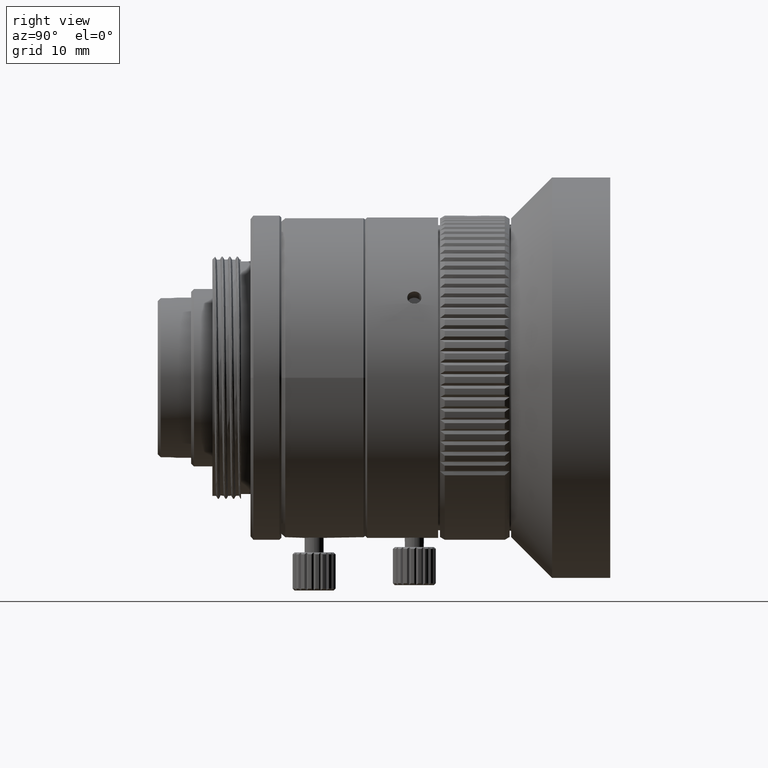
[diagram: clean part render]
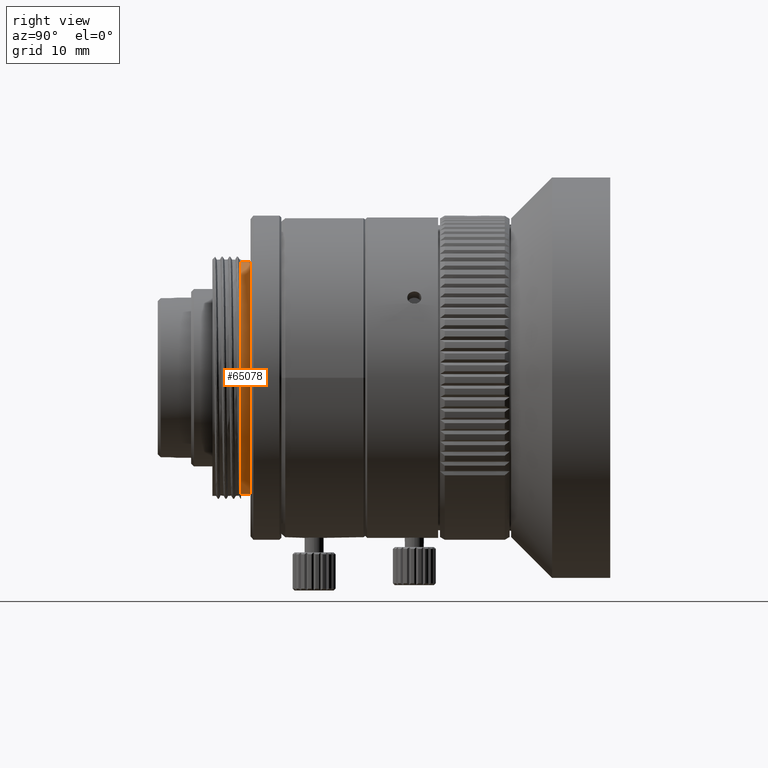
[diagram: same view with one face highlighted and labeled with its STEP entity id]
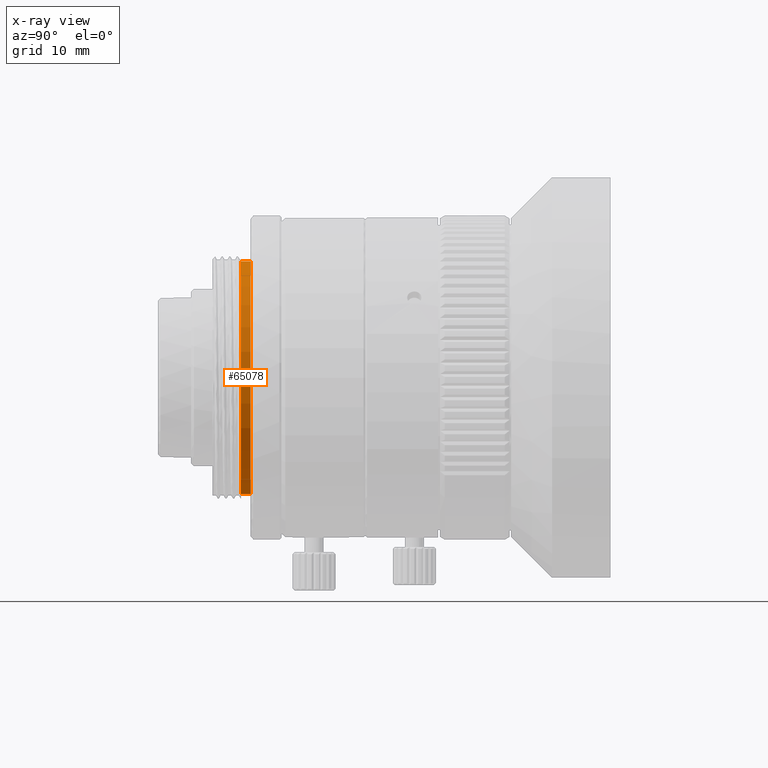
[diagram: x-ray of the same camera — body ghosted, the highlighted face saturated]
A machine part, right view. The second image highlights one B-rep face of the part: STEP entity #65078.
The next image is the same camera in x-ray: the body ghosted, the highlighted face saturated — about 0% of this face is hidden behind the body in this view.
In plain terms, the highlighted cylindrical surface (partial cylindrical patch) has radius 12.2 mm, axis along (0, -1, 0).
Its self-contained STEP definition (entity closure, byte-faithful):
#4208 = ORIENTED_EDGE ( 'NONE', *, *, #79176, .T. ) ;
#4575 = CARTESIAN_POINT ( 'NONE',  ( 0.000000000000000000, -9.900533375536999969, -12.19999999999999929 ) ) ;
#4919 = CARTESIAN_POINT ( 'NONE',  ( 0.000000000000000000, -9.900533375536999969, 0.000000000000000000 ) ) ;
#6666 = EDGE_CURVE ( 'NONE', #29202, #13579, #39904, .T. ) ;
#8009 = DIRECTION ( 'NONE',  ( 0.000000000000000000, 0.000000000000000000, -1.000000000000000000 ) ) ;
#9044 = CIRCLE ( 'NONE', #27164, 12.19999999999999929 ) ;
#11989 = DIRECTION ( 'NONE',  ( 0.000000000000000000, 0.000000000000000000, -1.000000000000000000 ) ) ;
#13579 = VERTEX_POINT ( 'NONE', #21534 ) ;
#17277 = DIRECTION ( 'NONE',  ( 0.000000000000000000, -1.000000000000000000, 0.000000000000000000 ) ) ;
#21534 = CARTESIAN_POINT ( 'NONE',  ( 1.494069094959770859E-15, -10.95905001342000062, 12.19999999999999929 ) ) ;
#27164 = AXIS2_PLACEMENT_3D ( 'NONE', #49981, #78745, #8009 ) ;
#27918 = AXIS2_PLACEMENT_3D ( 'NONE', #29027, #93138, #80871 ) ;
#29027 = CARTESIAN_POINT ( 'NONE',  ( 0.000000000000000000, -9.959050013417000358, 0.000000000000000000 ) ) ;
#29202 = VERTEX_POINT ( 'NONE', #31054 ) ;
#31054 = CARTESIAN_POINT ( 'NONE',  ( 1.494069094959770859E-15, -9.959050013417000358, 12.19999999999999929 ) ) ;
#31738 = ORIENTED_EDGE ( 'NONE', *, *, #93144, .T. ) ;
#39904 = LINE ( 'NONE', #54513, #76723 ) ;
#40383 = AXIS2_PLACEMENT_3D ( 'NONE', #4919, #60553, #11989 ) ;
#47469 = LINE ( 'NONE', #4575, #52466 ) ;
#49981 = CARTESIAN_POINT ( 'NONE',  ( 0.000000000000000000, -10.95905001342000062, 0.000000000000000000 ) ) ;
#52466 = VECTOR ( 'NONE', #68199, 1000.000000000000000 ) ;
#54513 = CARTESIAN_POINT ( 'NONE',  ( 1.494069094959770859E-15, -9.900533375536999969, 12.19999999999999929 ) ) ;
#56567 = CARTESIAN_POINT ( 'NONE',  ( 0.000000000000000000, -9.959050013417000358, -12.19999999999999929 ) ) ;
#57750 = VERTEX_POINT ( 'NONE', #56567 ) ;
#60553 = DIRECTION ( 'NONE',  ( 0.000000000000000000, -1.000000000000000000, 0.000000000000000000 ) ) ;
#65078 = ADVANCED_FACE ( 'NONE', ( #82237 ), #76112, .T. ) ;
#68199 = DIRECTION ( 'NONE',  ( 0.000000000000000000, -1.000000000000000000, 0.000000000000000000 ) ) ;
#68405 = EDGE_CURVE ( 'NONE', #57750, #88160, #47469, .T. ) ;
#68689 = CARTESIAN_POINT ( 'NONE',  ( 0.000000000000000000, -10.95905001342000062, -12.19999999999999929 ) ) ;
#70268 = EDGE_LOOP ( 'NONE', ( #4208, #82027, #31738, #87815 ) ) ;
#76112 = CYLINDRICAL_SURFACE ( 'NONE', #40383, 12.19999999999999929 ) ;
#76723 = VECTOR ( 'NONE', #17277, 1000.000000000000000 ) ;
#78745 = DIRECTION ( 'NONE',  ( -0.000000000000000000, 1.000000000000000000, -0.000000000000000000 ) ) ;
#79176 = EDGE_CURVE ( 'NONE', #57750, #29202, #91196, .T. ) ;
#80871 = DIRECTION ( 'NONE',  ( 0.000000000000000000, 0.000000000000000000, -1.000000000000000000 ) ) ;
#82027 = ORIENTED_EDGE ( 'NONE', *, *, #6666, .T. ) ;
#82237 = FACE_OUTER_BOUND ( 'NONE', #70268, .T. ) ;
#87815 = ORIENTED_EDGE ( 'NONE', *, *, #68405, .F. ) ;
#88160 = VERTEX_POINT ( 'NONE', #68689 ) ;
#91196 = CIRCLE ( 'NONE', #27918, 12.19999999999999929 ) ;
#93138 = DIRECTION ( 'NONE',  ( 0.000000000000000000, -1.000000000000000000, 0.000000000000000000 ) ) ;
#93144 = EDGE_CURVE ( 'NONE', #13579, #88160, #9044, .T. ) ;